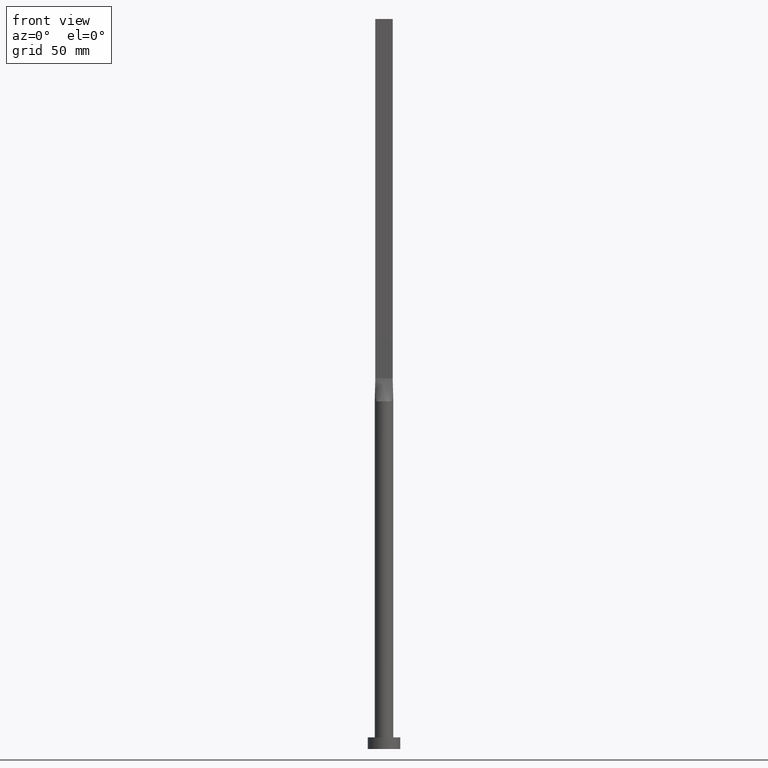
[diagram: clean part render]
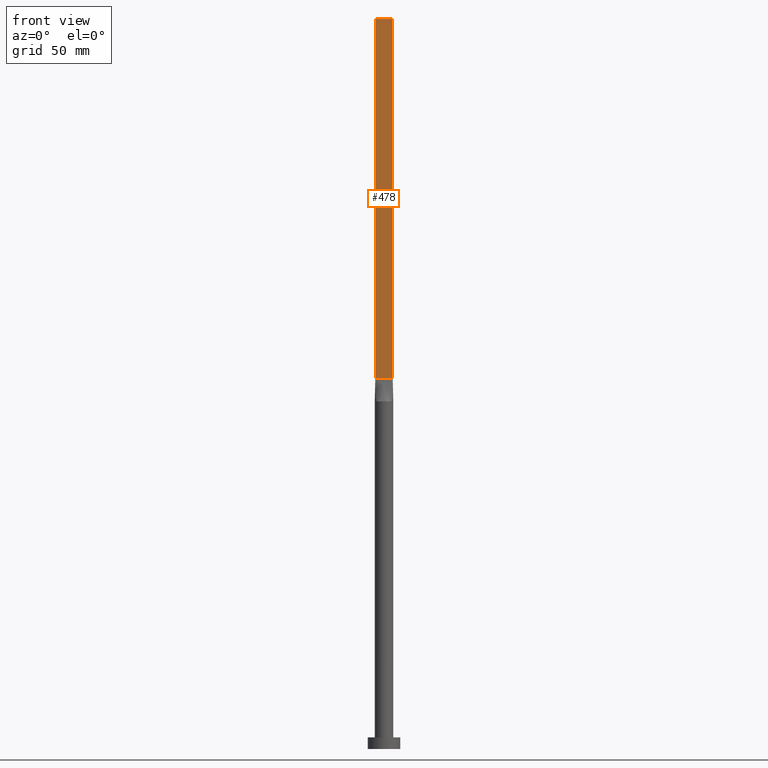
[diagram: same view with one face highlighted and labeled with its STEP entity id]
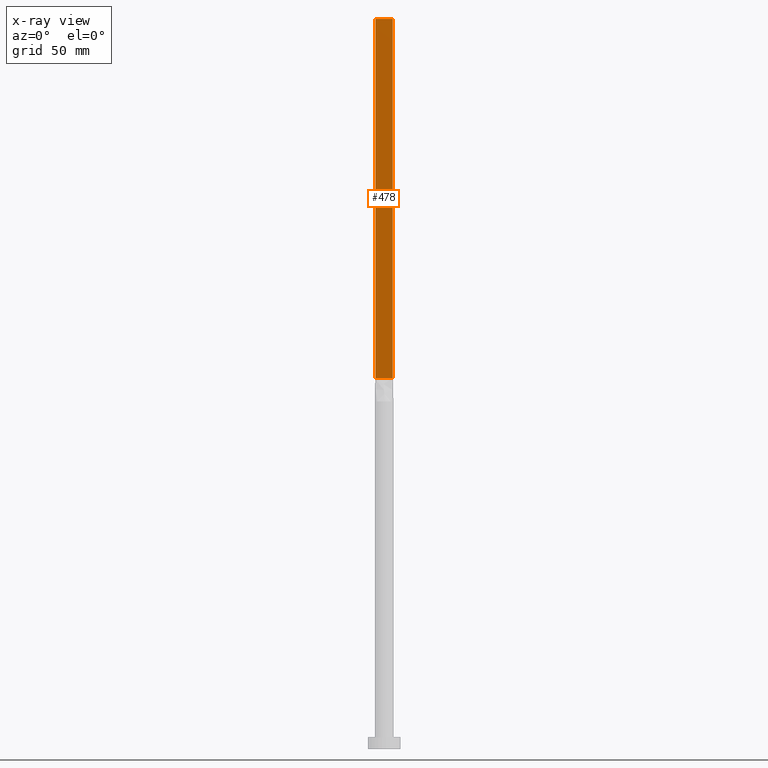
[diagram: x-ray of the same camera — body ghosted, the highlighted face saturated]
A machine part, front view. The second image highlights one B-rep face of the part: STEP entity #478.
The next image is the same camera in x-ray: the body ghosted, the highlighted face saturated — about 0% of this face is hidden behind the body in this view.
In plain terms, the highlighted planar face has unit normal (0, 1, -0).
Its self-contained STEP definition (entity closure, byte-faithful):
#37 = CARTESIAN_POINT ( 'NONE',  ( -3.750000000000000000, -0.9999999999999991118, 315.0000000000000000 ) ) ;
#62 = CARTESIAN_POINT ( 'NONE',  ( 3.750000000000000000, -0.9999999999999997780, 315.0000000000000000 ) ) ;
#83 = LINE ( 'NONE', #442, #523 ) ;
#103 = VERTEX_POINT ( 'NONE', #570 ) ;
#108 = AXIS2_PLACEMENT_3D ( 'NONE', #560, #330, #469 ) ;
#138 = DIRECTION ( 'NONE',  ( 1.000000000000000000, -8.673617379884035472E-17, 0.000000000000000000 ) ) ;
#151 = EDGE_CURVE ( 'NONE', #154, #371, #435, .T. ) ;
#154 = VERTEX_POINT ( 'NONE', #378 ) ;
#168 = CARTESIAN_POINT ( 'NONE',  ( -3.750000000000000000, -0.9999999999999991118, 160.0000000000000000 ) ) ;
#175 = LINE ( 'NONE', #357, #263 ) ;
#201 = DIRECTION ( 'NONE',  ( 1.000000000000000000, -8.673617379884035472E-17, 0.000000000000000000 ) ) ;
#210 = DIRECTION ( 'NONE',  ( -0.000000000000000000, -0.000000000000000000, -1.000000000000000000 ) ) ;
#225 = CARTESIAN_POINT ( 'NONE',  ( 3.750000000000000000, -0.9999999999999997780, 160.0000000000000000 ) ) ;
#229 = EDGE_CURVE ( 'NONE', #480, #371, #175, .T. ) ;
#240 = EDGE_CURVE ( 'NONE', #103, #480, #543, .T. ) ;
#263 = VECTOR ( 'NONE', #307, 1000.000000000000000 ) ;
#307 = DIRECTION ( 'NONE',  ( -0.000000000000000000, -0.000000000000000000, -1.000000000000000000 ) ) ;
#330 = DIRECTION ( 'NONE',  ( 8.673617379884036705E-17, 1.000000000000000000, -0.000000000000000000 ) ) ;
#357 = CARTESIAN_POINT ( 'NONE',  ( 3.750000000000000000, -0.9999999999999997780, 315.0000000000000000 ) ) ;
#371 = VERTEX_POINT ( 'NONE', #225 ) ;
#372 = PLANE ( 'NONE',  #108 ) ;
#378 = CARTESIAN_POINT ( 'NONE',  ( -3.750000000000000000, -0.9999999999999991118, 160.0000000000000000 ) ) ;
#386 = EDGE_LOOP ( 'NONE', ( #553, #413, #508, #464 ) ) ;
#409 = VECTOR ( 'NONE', #201, 1000.000000000000000 ) ;
#413 = ORIENTED_EDGE ( 'NONE', *, *, #229, .F. ) ;
#420 = FACE_OUTER_BOUND ( 'NONE', #386, .T. ) ;
#435 = LINE ( 'NONE', #168, #409 ) ;
#442 = CARTESIAN_POINT ( 'NONE',  ( -3.750000000000000000, -0.9999999999999991118, 315.0000000000000000 ) ) ;
#464 = ORIENTED_EDGE ( 'NONE', *, *, #544, .T. ) ;
#469 = DIRECTION ( 'NONE',  ( -1.000000000000000000, 8.673617379884036705E-17, 0.000000000000000000 ) ) ;
#478 = ADVANCED_FACE ( 'NONE', ( #420 ), #372, .F. ) ;
#480 = VERTEX_POINT ( 'NONE', #62 ) ;
#508 = ORIENTED_EDGE ( 'NONE', *, *, #240, .F. ) ;
#523 = VECTOR ( 'NONE', #210, 1000.000000000000000 ) ;
#543 = LINE ( 'NONE', #37, #550 ) ;
#544 = EDGE_CURVE ( 'NONE', #103, #154, #83, .T. ) ;
#550 = VECTOR ( 'NONE', #138, 1000.000000000000000 ) ;
#553 = ORIENTED_EDGE ( 'NONE', *, *, #151, .T. ) ;
#560 = CARTESIAN_POINT ( 'NONE',  ( -3.750000000000000000, -0.9999999999999991118, 315.0000000000000000 ) ) ;
#570 = CARTESIAN_POINT ( 'NONE',  ( -3.750000000000000000, -0.9999999999999991118, 315.0000000000000000 ) ) ;